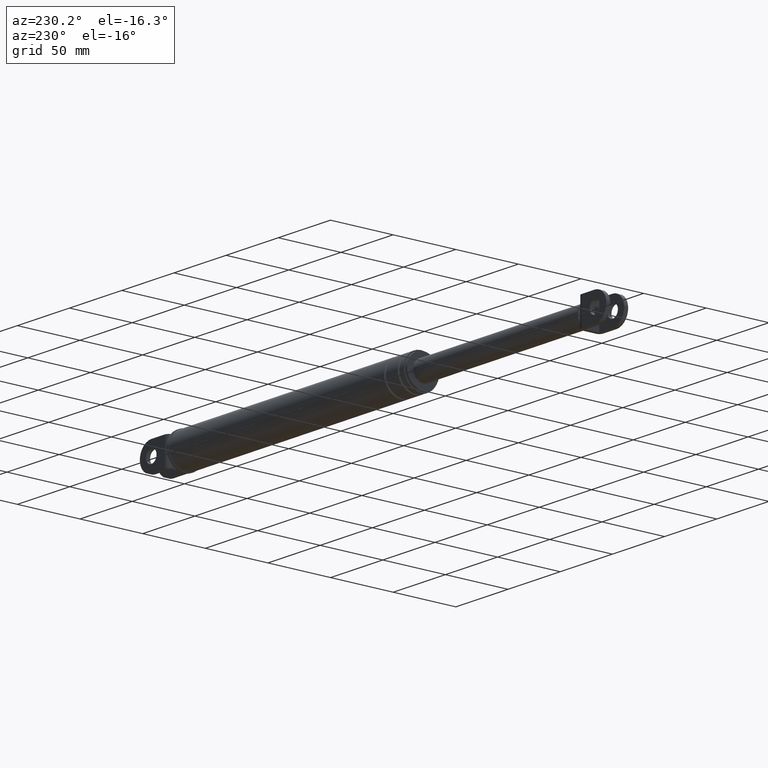
[diagram: clean part render]
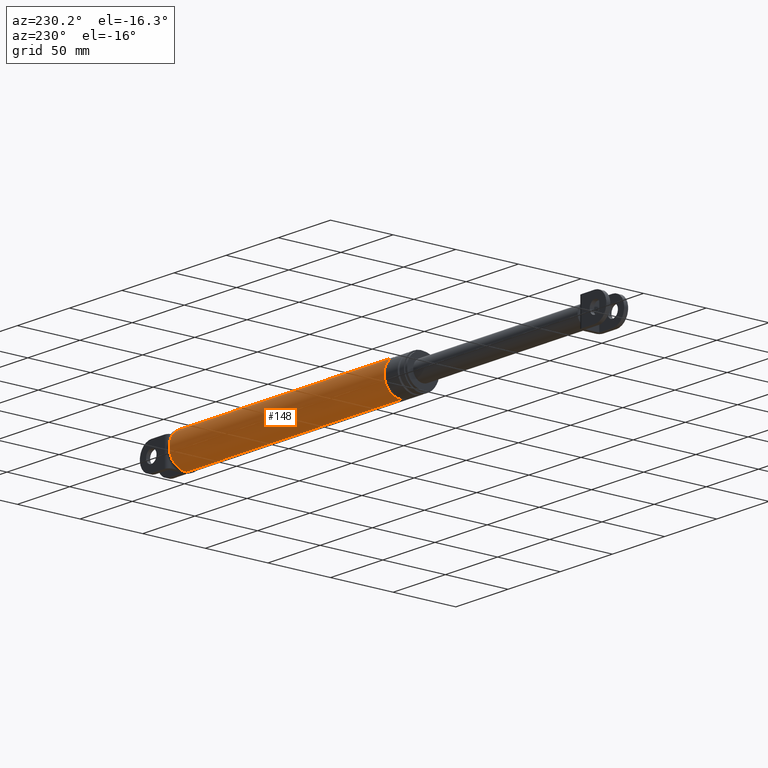
[diagram: same view with one face highlighted and labeled with its STEP entity id]
A machine part, auxiliary view. The second image highlights one B-rep face of the part: STEP entity #148.
In plain terms, the highlighted cylindrical surface (edge-blend (fillet) strip) has radius 13.7 mm, axis along (1, 0, 0).
Its self-contained STEP definition (entity closure, byte-faithful):
#148=ADVANCED_FACE('',(#548),#547,.T.);
#547=CYLINDRICAL_SURFACE('',#1259,1.37000000000E+001);
#548=FACE_OUTER_BOUND('',#1260,.T.);
#1256=CARTESIAN_POINT('',(0.00000000000E+000,0.00000000000E+000,1.84606082580E+002));
#1257=DIRECTION('',(1.00000000000E+000,-0.00000000000E+000,-0.00000000000E+000));
#1258=DIRECTION('',(-0.00000000000E+000,-0.00000000000E+000,-1.00000000000E+000));
#1259=AXIS2_PLACEMENT_3D('',#1256,#1257,#1258);
#1260=EDGE_LOOP('',(#1692,#1693,#1694,#1695));
#1692=ORIENTED_EDGE('',*,*,#1916,.T.);
#1693=ORIENTED_EDGE('',*,*,#1946,.F.);
#1694=ORIENTED_EDGE('',*,*,#1934,.F.);
#1695=ORIENTED_EDGE('',*,*,#1947,.T.);
#1916=EDGE_CURVE('',#2423,#2422,#2430,.T.);
#1934=EDGE_CURVE('',#2544,#2545,#2546,.T.);
#1946=EDGE_CURVE('',#2545,#2422,#2622,.T.);
#1947=EDGE_CURVE('',#2544,#2423,#2628,.T.);
#2422=VERTEX_POINT('',#3404);
#2423=VERTEX_POINT('',#3405);
#2430=CIRCLE('',#3413,1.37000000000E+001);
#2544=VERTEX_POINT('',#3476);
#2545=VERTEX_POINT('',#3477);
#2546=CIRCLE('',#3481,1.37000000000E+001);
#2622=(BOUNDED_CURVE() B_SPLINE_CURVE(1,(#3526,#3527),.UNSPECIFIED.,.F.,.F.) B_SPLINE_CURVE_WITH_KNOTS((2,2),(4.42477876322E-002,9.55752212239E-001),.UNSPECIFIED.) CURVE() GEOMETRIC_REPRESENTATION_ITEM() RATIONAL_B_SPLINE_CURVE((1.00000000000E+000,1.00000000000E+000)) REPRESENTATION_ITEM('') );
#2628=(BOUNDED_CURVE() B_SPLINE_CURVE(1,(#3528,#3529),.UNSPECIFIED.,.F.,.F.) B_SPLINE_CURVE_WITH_KNOTS((2,2),(4.42477876106E-002,9.55752212389E-001),.UNSPECIFIED.) CURVE() GEOMETRIC_REPRESENTATION_ITEM() RATIONAL_B_SPLINE_CURVE((7.50000000000E-001,7.50000000000E-001)) REPRESENTATION_ITEM('') );
#3404=CARTESIAN_POINT('',(3.98295255021E+002,0.00000000000E+000,1.70906082580E+002));
#3405=CARTESIAN_POINT('',(3.98295255021E+002,0.00000000000E+000,1.98306082580E+002));
#3410=CARTESIAN_POINT('',(3.98295255021E+002,0.00000000000E+000,1.84606082580E+002));
#3411=DIRECTION('',(-1.00000000000E+000,0.00000000000E+000,0.00000000000E+000));
#3412=DIRECTION('',(0.00000000000E+000,-1.22460635382E-016,1.00000000000E+000));
#3413=AXIS2_PLACEMENT_3D('',#3410,#3411,#3412);
#3476=CARTESIAN_POINT('',(1.92295255021E+002,0.00000000000E+000,1.98306082580E+002));
#3477=CARTESIAN_POINT('',(1.92295255021E+002,0.00000000000E+000,1.70906082580E+002));
#3478=CARTESIAN_POINT('',(1.92295255021E+002,0.00000000000E+000,1.84606082580E+002));
#3479=DIRECTION('',(-1.00000000000E+000,0.00000000000E+000,0.00000000000E+000));
#3480=DIRECTION('',(0.00000000000E+000,-1.22460635382E-016,1.00000000000E+000));
#3481=AXIS2_PLACEMENT_3D('',#3478,#3479,#3480);
#3526=CARTESIAN_POINT('',(1.92295255026E+002,0.00000000000E+000,1.70906082580E+002));
#3527=CARTESIAN_POINT('',(3.98295254987E+002,0.00000000000E+000,1.70906082580E+002));
#3528=CARTESIAN_POINT('',(1.92295255021E+002,-5.92118946467E-016,1.98306082580E+002));
#3529=CARTESIAN_POINT('',(3.98295255021E+002,-5.92118946467E-016,1.98306082580E+002));